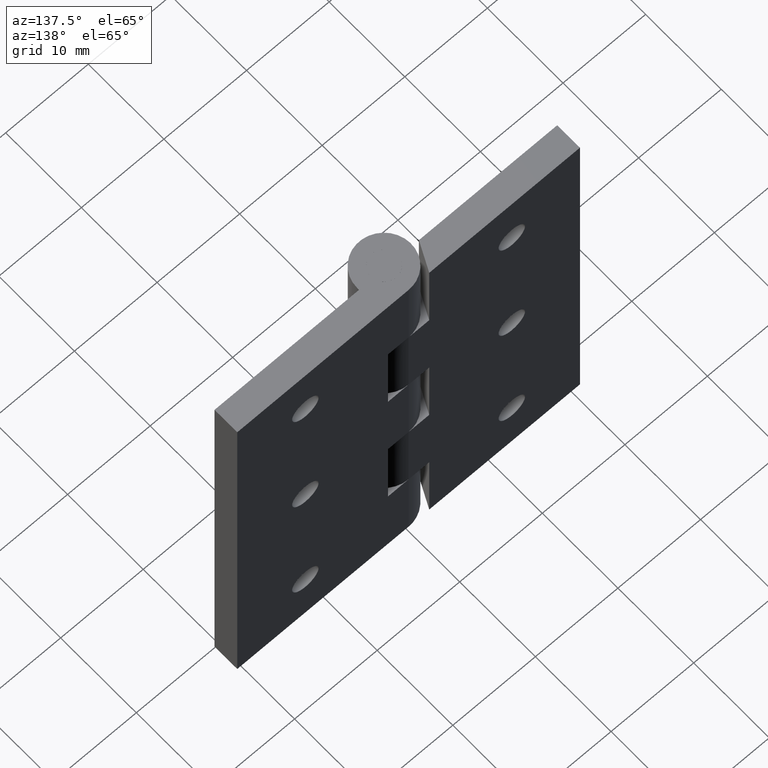
[diagram: clean part render]
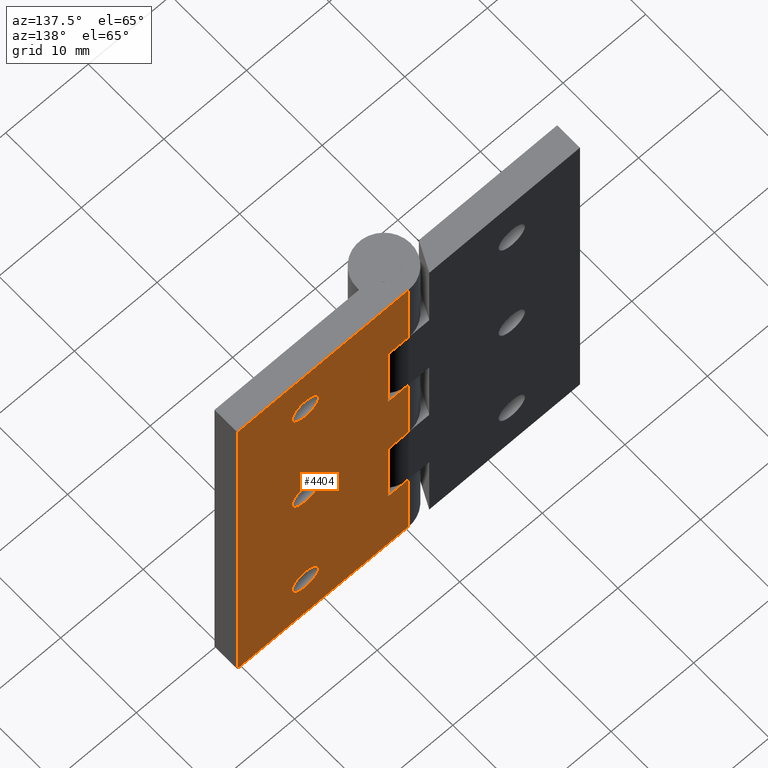
[diagram: same view with one face highlighted and labeled with its STEP entity id]
A machine part, auxiliary view. The second image highlights one B-rep face of the part: STEP entity #4404.
In plain terms, the highlighted face is a freeform B-spline surface patch.
Its self-contained STEP definition (entity closure, byte-faithful):
#2379=CARTESIAN_POINT('',(14.097015677470051,3.250002000000000,43.097677663336462));
#2380=VERTEX_POINT('',#2379);
#2386=CARTESIAN_POINT('',(12.500000000000000,3.250002000000000,41.399999999999999));
#2387=VERTEX_POINT('',#2386);
#2388=CARTESIAN_POINT('',(14.097015677470059,3.250002000000000,43.097677663336462));
#2389=CARTESIAN_POINT('',(14.100000000000003,3.250002000000000,43.048884421318199));
#2390=CARTESIAN_POINT('',(14.100000000000000,3.250002000000000,43.0));
#2391=CARTESIAN_POINT('',(14.100000000000001,3.250002000000001,41.399999999999999));
#2392=CARTESIAN_POINT('',(12.500000000000000,3.250002000000000,41.399999999999999));
#2400=(BOUNDED_CURVE()B_SPLINE_CURVE(2,(#2388,#2389,#2390,#2391,#2392),.UNSPECIFIED.,.F.,.U.)B_SPLINE_CURVE_WITH_KNOTS((3,2,3),(0.239332962233251,0.250000000000000,0.500000000000000),.UNSPECIFIED.)CURVE()GEOMETRIC_REPRESENTATION_ITEM()RATIONAL_B_SPLINE_CURVE((0.976072041654520,0.987502787893169,1.0,0.707106781186548,1.0))REPRESENTATION_ITEM(''));
#2401=EDGE_CURVE('',#2380,#2387,#2400,.T.);
#2403=CARTESIAN_POINT('',(10.902984322529949,3.250002000000000,42.902322336663552));
#2404=VERTEX_POINT('',#2403);
#2405=CARTESIAN_POINT('',(12.500000000000000,3.250002000000000,41.399999999999999));
#2406=CARTESIAN_POINT('',(10.994870293027079,3.250002000000000,41.399999999999999));
#2407=CARTESIAN_POINT('',(10.902984322529951,3.250002000000000,42.902322336663531));
#2415=(BOUNDED_CURVE()B_SPLINE_CURVE(2,(#2405,#2406,#2407),.UNSPECIFIED.,.F.,.U.)B_SPLINE_CURVE_WITH_KNOTS((3,3),(0.500000000000000,0.739332962233250),.UNSPECIFIED.)CURVE()GEOMETRIC_REPRESENTATION_ITEM()RATIONAL_B_SPLINE_CURVE((1.0,0.719603993293380,0.976072041654517))REPRESENTATION_ITEM(''));
#2416=EDGE_CURVE('',#2387,#2404,#2415,.T.);
#2449=CARTESIAN_POINT('',(12.500000000000000,3.250002000000000,44.599999999999987));
#2450=VERTEX_POINT('',#2449);
#2451=CARTESIAN_POINT('',(10.902984322529946,3.250002000000000,42.902322336663538));
#2452=CARTESIAN_POINT('',(10.899999999999997,3.250002000000001,42.951115578681808));
#2453=CARTESIAN_POINT('',(10.900000000000000,3.250002000000000,43.0));
#2454=CARTESIAN_POINT('',(10.900000000000000,3.250002000000001,44.600000000000001));
#2455=CARTESIAN_POINT('',(12.500000000000000,3.250002000000000,44.599999999999987));
#2463=(BOUNDED_CURVE()B_SPLINE_CURVE(2,(#2451,#2452,#2453,#2454,#2455),.UNSPECIFIED.,.F.,.U.)B_SPLINE_CURVE_WITH_KNOTS((3,2,3),(0.739332962233251,0.750000000000000,1.0),.UNSPECIFIED.)CURVE()GEOMETRIC_REPRESENTATION_ITEM()RATIONAL_B_SPLINE_CURVE((0.976072041654519,0.987502787893169,1.0,0.707106781186548,1.0))REPRESENTATION_ITEM(''));
#2464=EDGE_CURVE('',#2404,#2450,#2463,.T.);
#2466=CARTESIAN_POINT('',(12.500000000000000,3.250002000000000,44.599999999999987));
#2467=CARTESIAN_POINT('',(14.005129706972923,3.250002000000001,44.599999999999994));
#2468=CARTESIAN_POINT('',(14.097015677470056,3.250002000000001,43.097677663336462));
#2476=(BOUNDED_CURVE()B_SPLINE_CURVE(2,(#2466,#2467,#2468),.UNSPECIFIED.,.F.,.U.)B_SPLINE_CURVE_WITH_KNOTS((3,3),(0.0,0.239332962233251),.UNSPECIFIED.)CURVE()GEOMETRIC_REPRESENTATION_ITEM()RATIONAL_B_SPLINE_CURVE((1.0,0.719603993293379,0.976072041654518))REPRESENTATION_ITEM(''));
#2477=EDGE_CURVE('',#2450,#2380,#2476,.T.);
#2715=CARTESIAN_POINT('',(14.097015677470051,3.250002000000000,25.097677663336459));
#2716=VERTEX_POINT('',#2715);
#2722=CARTESIAN_POINT('',(12.500000000000000,3.250002000000000,23.399999999999999));
#2723=VERTEX_POINT('',#2722);
#2724=CARTESIAN_POINT('',(14.097015677470052,3.250002000000001,25.097677663336462));
#2725=CARTESIAN_POINT('',(14.100000000000007,3.250002000000000,25.048884421318196));
#2726=CARTESIAN_POINT('',(14.100000000000000,3.250002000000000,25.0));
#2727=CARTESIAN_POINT('',(14.100000000000001,3.250002000000001,23.400000000000009));
#2728=CARTESIAN_POINT('',(12.500000000000000,3.250002000000000,23.399999999999999));
#2736=(BOUNDED_CURVE()B_SPLINE_CURVE(2,(#2724,#2725,#2726,#2727,#2728),.UNSPECIFIED.,.F.,.U.)B_SPLINE_CURVE_WITH_KNOTS((3,2,3),(0.239332962233251,0.250000000000000,0.500000000000000),.UNSPECIFIED.)CURVE()GEOMETRIC_REPRESENTATION_ITEM()RATIONAL_B_SPLINE_CURVE((0.976072041654518,0.987502787893168,1.0,0.707106781186548,1.0))REPRESENTATION_ITEM(''));
#2737=EDGE_CURVE('',#2716,#2723,#2736,.T.);
#2739=CARTESIAN_POINT('',(10.902984322529949,3.250002000000000,24.902322336663548));
#2740=VERTEX_POINT('',#2739);
#2741=CARTESIAN_POINT('',(12.500000000000000,3.250002000000000,23.399999999999999));
#2742=CARTESIAN_POINT('',(10.994870293027075,3.250002000000001,23.400000000000002));
#2743=CARTESIAN_POINT('',(10.902984322529946,3.250002000000000,24.902322336663545));
#2751=(BOUNDED_CURVE()B_SPLINE_CURVE(2,(#2741,#2742,#2743),.UNSPECIFIED.,.F.,.U.)B_SPLINE_CURVE_WITH_KNOTS((3,3),(0.500000000000000,0.739332962233251),.UNSPECIFIED.)CURVE()GEOMETRIC_REPRESENTATION_ITEM()RATIONAL_B_SPLINE_CURVE((1.0,0.719603993293379,0.976072041654518))REPRESENTATION_ITEM(''));
#2752=EDGE_CURVE('',#2723,#2740,#2751,.T.);
#2785=CARTESIAN_POINT('',(12.500000000000000,3.250002000000000,26.600000000000001));
#2786=VERTEX_POINT('',#2785);
#2787=CARTESIAN_POINT('',(10.902984322529942,3.250002000000001,24.902322336663545));
#2788=CARTESIAN_POINT('',(10.900000000000002,3.250002000000000,24.951115578681801));
#2789=CARTESIAN_POINT('',(10.900000000000000,3.250002000000000,25.0));
#2790=CARTESIAN_POINT('',(10.900000000000000,3.250002000000001,26.599999999999991));
#2791=CARTESIAN_POINT('',(12.500000000000000,3.250002000000000,26.600000000000001));
#2799=(BOUNDED_CURVE()B_SPLINE_CURVE(2,(#2787,#2788,#2789,#2790,#2791),.UNSPECIFIED.,.F.,.U.)B_SPLINE_CURVE_WITH_KNOTS((3,2,3),(0.739332962233251,0.750000000000000,1.0),.UNSPECIFIED.)CURVE()GEOMETRIC_REPRESENTATION_ITEM()RATIONAL_B_SPLINE_CURVE((0.976072041654519,0.987502787893169,1.0,0.707106781186548,1.0))REPRESENTATION_ITEM(''));
#2800=EDGE_CURVE('',#2740,#2786,#2799,.T.);
#2802=CARTESIAN_POINT('',(12.500000000000000,3.250002000000000,26.600000000000001));
#2803=CARTESIAN_POINT('',(14.005129706972927,3.250002000000000,26.599999999999998));
#2804=CARTESIAN_POINT('',(14.097015677470058,3.250002000000000,25.097677663336462));
#2812=(BOUNDED_CURVE()B_SPLINE_CURVE(2,(#2802,#2803,#2804),.UNSPECIFIED.,.F.,.U.)B_SPLINE_CURVE_WITH_KNOTS((3,3),(0.0,0.239332962233251),.UNSPECIFIED.)CURVE()GEOMETRIC_REPRESENTATION_ITEM()RATIONAL_B_SPLINE_CURVE((1.0,0.719603993293379,0.976072041654518))REPRESENTATION_ITEM(''));
#2813=EDGE_CURVE('',#2786,#2716,#2812,.T.);
#3051=CARTESIAN_POINT('',(14.097015677470051,3.250002000000000,7.097677663336357));
#3052=VERTEX_POINT('',#3051);
#3058=CARTESIAN_POINT('',(12.500000000000000,3.250002000000000,5.399999999999901));
#3059=VERTEX_POINT('',#3058);
#3060=CARTESIAN_POINT('',(14.097015677470052,3.250002000000001,7.097677663336356));
#3061=CARTESIAN_POINT('',(14.100000000000001,3.250002000000000,7.048884421318098));
#3062=CARTESIAN_POINT('',(14.100000000000000,3.250002000000000,6.999999999999901));
#3063=CARTESIAN_POINT('',(14.100000000000001,3.250002000000001,5.399999999999901));
#3064=CARTESIAN_POINT('',(12.500000000000000,3.250002000000000,5.399999999999901));
#3072=(BOUNDED_CURVE()B_SPLINE_CURVE(2,(#3060,#3061,#3062,#3063,#3064),.UNSPECIFIED.,.F.,.U.)B_SPLINE_CURVE_WITH_KNOTS((3,2,3),(0.239332962233251,0.250000000000000,0.500000000000000),.UNSPECIFIED.)CURVE()GEOMETRIC_REPRESENTATION_ITEM()RATIONAL_B_SPLINE_CURVE((0.976072041654519,0.987502787893169,1.0,0.707106781186548,1.0))REPRESENTATION_ITEM(''));
#3073=EDGE_CURVE('',#3052,#3059,#3072,.T.);
#3075=CARTESIAN_POINT('',(10.902984322529949,3.250002000000000,6.902322336663445));
#3076=VERTEX_POINT('',#3075);
#3077=CARTESIAN_POINT('',(12.500000000000000,3.250002000000000,5.399999999999901));
#3078=CARTESIAN_POINT('',(10.994870293027072,3.250002000000001,5.399999999999902));
#3079=CARTESIAN_POINT('',(10.902984322529942,3.250002000000001,6.902322336663445));
#3087=(BOUNDED_CURVE()B_SPLINE_CURVE(2,(#3077,#3078,#3079),.UNSPECIFIED.,.F.,.U.)B_SPLINE_CURVE_WITH_KNOTS((3,3),(0.500000000000000,0.739332962233251),.UNSPECIFIED.)CURVE()GEOMETRIC_REPRESENTATION_ITEM()RATIONAL_B_SPLINE_CURVE((1.0,0.719603993293379,0.976072041654519))REPRESENTATION_ITEM(''));
#3088=EDGE_CURVE('',#3059,#3076,#3087,.T.);
#3121=CARTESIAN_POINT('',(12.500000000000000,3.250002000000000,8.599999999999902));
#3122=VERTEX_POINT('',#3121);
#3123=CARTESIAN_POINT('',(10.902984322529951,3.250002000000001,6.902322336663447));
#3124=CARTESIAN_POINT('',(10.900000000000000,3.250002000000001,6.951115578681704));
#3125=CARTESIAN_POINT('',(10.900000000000000,3.250002000000000,6.999999999999901));
#3126=CARTESIAN_POINT('',(10.900000000000000,3.250002000000001,8.599999999999900));
#3127=CARTESIAN_POINT('',(12.500000000000000,3.250002000000000,8.599999999999902));
#3135=(BOUNDED_CURVE()B_SPLINE_CURVE(2,(#3123,#3124,#3125,#3126,#3127),.UNSPECIFIED.,.F.,.U.)B_SPLINE_CURVE_WITH_KNOTS((3,2,3),(0.739332962233251,0.750000000000000,1.0),.UNSPECIFIED.)CURVE()GEOMETRIC_REPRESENTATION_ITEM()RATIONAL_B_SPLINE_CURVE((0.976072041654519,0.987502787893169,1.0,0.707106781186548,1.0))REPRESENTATION_ITEM(''));
#3136=EDGE_CURVE('',#3076,#3122,#3135,.T.);
#3138=CARTESIAN_POINT('',(12.500000000000000,3.250002000000000,8.599999999999902));
#3139=CARTESIAN_POINT('',(14.005129706972930,3.250002000000001,8.599999999999898));
#3140=CARTESIAN_POINT('',(14.097015677470052,3.250002000000001,7.097677663336357));
#3148=(BOUNDED_CURVE()B_SPLINE_CURVE(2,(#3138,#3139,#3140),.UNSPECIFIED.,.F.,.U.)B_SPLINE_CURVE_WITH_KNOTS((3,3),(0.0,0.239332962233251),.UNSPECIFIED.)CURVE()GEOMETRIC_REPRESENTATION_ITEM()RATIONAL_B_SPLINE_CURVE((1.0,0.719603993293379,0.976072041654519))REPRESENTATION_ITEM(''));
#3149=EDGE_CURVE('',#3122,#3052,#3148,.T.);
#3709=CARTESIAN_POINT('',(20.750000000000000,3.250002000000000,50.0));
#3710=VERTEX_POINT('',#3709);
#3723=CARTESIAN_POINT('',(20.750000000000000,3.250002000000000,0.0));
#3724=VERTEX_POINT('',#3723);
#3730=CARTESIAN_POINT('',(20.750000000000000,3.250002000000000,0.0));
#3731=CARTESIAN_POINT('',(20.750000000000000,3.250002000000000,50.0));
#3732=QUASI_UNIFORM_CURVE('',1,(#3730,#3731),.UNSPECIFIED.,.F.,.U.);
#3733=EDGE_CURVE('',#3724,#3710,#3732,.T.);
#3744=CARTESIAN_POINT('',(0.0,3.250002000000000,50.0));
#3745=VERTEX_POINT('',#3744);
#3746=CARTESIAN_POINT('',(20.750000000000000,3.250002000000000,50.0));
#3747=CARTESIAN_POINT('',(0.0,3.250002000000000,50.0));
#3748=QUASI_UNIFORM_CURVE('',1,(#3746,#3747),.UNSPECIFIED.,.F.,.U.);
#3749=EDGE_CURVE('',#3710,#3745,#3748,.T.);
#3826=CARTESIAN_POINT('',(0.0,3.250002000000000,0.0));
#3827=VERTEX_POINT('',#3826);
#3860=CARTESIAN_POINT('',(20.750000000000000,3.250002000000000,0.0));
#3861=CARTESIAN_POINT('',(0.0,3.250002000000000,0.0));
#3862=QUASI_UNIFORM_CURVE('',1,(#3860,#3861),.UNSPECIFIED.,.F.,.U.);
#3863=EDGE_CURVE('',#3724,#3827,#3862,.T.);
#3924=CARTESIAN_POINT('',(-5.969960E-016,3.250002000000000,40.0));
#3925=VERTEX_POINT('',#3924);
#3959=CARTESIAN_POINT('',(-5.969960E-016,3.250002000000000,40.0));
#3960=CARTESIAN_POINT('',(0.0,3.250002000000000,50.0));
#3961=QUASI_UNIFORM_CURVE('',1,(#3959,#3960),.UNSPECIFIED.,.F.,.U.);
#3962=EDGE_CURVE('',#3925,#3745,#3961,.T.);
#3981=CARTESIAN_POINT('',(-5.969960E-016,3.250002000000000,20.0));
#3982=VERTEX_POINT('',#3981);
#4014=CARTESIAN_POINT('',(2.499982999999825,3.250002000000000,20.0));
#4015=VERTEX_POINT('',#4014);
#4016=CARTESIAN_POINT('',(-5.969960E-016,3.250002000000000,20.0));
#4017=CARTESIAN_POINT('',(2.499982999999825,3.250002000000000,20.0));
#4018=QUASI_UNIFORM_CURVE('',1,(#4016,#4017),.UNSPECIFIED.,.F.,.U.);
#4019=EDGE_CURVE('',#3982,#4015,#4018,.T.);
#4063=CARTESIAN_POINT('',(2.499982999999825,3.250002000000000,10.0));
#4064=VERTEX_POINT('',#4063);
#4070=CARTESIAN_POINT('',(-5.969960E-016,3.250002000000000,10.0));
#4071=VERTEX_POINT('',#4070);
#4072=CARTESIAN_POINT('',(-5.969960E-016,3.250002000000000,10.0));
#4073=CARTESIAN_POINT('',(2.499982999999825,3.250002000000000,10.0));
#4074=QUASI_UNIFORM_CURVE('',1,(#4072,#4073),.UNSPECIFIED.,.F.,.U.);
#4075=EDGE_CURVE('',#4071,#4064,#4074,.T.);
#4123=CARTESIAN_POINT('',(2.499982999999825,3.250002000000000,10.0));
#4124=CARTESIAN_POINT('',(2.499982999999825,3.250002000000000,20.0));
#4125=QUASI_UNIFORM_CURVE('',1,(#4123,#4124),.UNSPECIFIED.,.F.,.U.);
#4126=EDGE_CURVE('',#4064,#4015,#4125,.T.);
#4144=CARTESIAN_POINT('',(2.499982999999825,3.250002000000000,40.0));
#4145=VERTEX_POINT('',#4144);
#4146=CARTESIAN_POINT('',(-5.969960E-016,3.250002000000000,40.0));
#4147=CARTESIAN_POINT('',(2.499982999999825,3.250002000000000,40.0));
#4148=QUASI_UNIFORM_CURVE('',1,(#4146,#4147),.UNSPECIFIED.,.F.,.U.);
#4149=EDGE_CURVE('',#3925,#4145,#4148,.T.);
#4193=CARTESIAN_POINT('',(2.499982999999825,3.250002000000000,30.0));
#4194=VERTEX_POINT('',#4193);
#4200=CARTESIAN_POINT('',(-5.969960E-016,3.250002000000000,30.0));
#4201=VERTEX_POINT('',#4200);
#4202=CARTESIAN_POINT('',(-5.969960E-016,3.250002000000000,30.0));
#4203=CARTESIAN_POINT('',(2.499982999999825,3.250002000000000,30.0));
#4204=QUASI_UNIFORM_CURVE('',1,(#4202,#4203),.UNSPECIFIED.,.F.,.U.);
#4205=EDGE_CURVE('',#4201,#4194,#4204,.T.);
#4254=CARTESIAN_POINT('',(2.499982999999825,3.250002000000000,30.0));
#4255=CARTESIAN_POINT('',(2.499982999999825,3.250002000000000,40.0));
#4256=QUASI_UNIFORM_CURVE('',1,(#4254,#4255),.UNSPECIFIED.,.F.,.U.);
#4257=EDGE_CURVE('',#4194,#4145,#4256,.T.);
#4354=CARTESIAN_POINT('',(0.0,3.250002000000000,0.0));
#4355=CARTESIAN_POINT('',(-5.969960E-016,3.250002000000000,10.0));
#4356=QUASI_UNIFORM_CURVE('',1,(#4354,#4355),.UNSPECIFIED.,.F.,.U.);
#4357=EDGE_CURVE('',#3827,#4071,#4356,.T.);
#4363=CARTESIAN_POINT('',(-1.036462459782475,3.250002000000000,-2.497499903090299));
#4364=CARTESIAN_POINT('',(-1.036462459782475,3.250002000000000,52.497501244194808));
#4365=CARTESIAN_POINT('',(21.786463016340850,3.250002000000000,-2.497499903090299));
#4366=CARTESIAN_POINT('',(21.786463016340850,3.250002000000000,52.497501244194808));
#4367=B_SPLINE_SURFACE_WITH_KNOTS('',1,1,((#4363,#4365),(#4364,#4366)),.UNSPECIFIED.,.F.,.F.,.U.,(2,2),(2,2),(0.0,54.995001147285109),(0.0,22.822925476123320),.UNSPECIFIED.);
#4368=ORIENTED_EDGE('',*,*,#4075,.T.);
#4369=ORIENTED_EDGE('',*,*,#4126,.T.);
#4370=ORIENTED_EDGE('',*,*,#4019,.F.);
#4371=CARTESIAN_POINT('',(-5.969960E-016,3.250002000000000,20.0));
#4372=CARTESIAN_POINT('',(-5.969960E-016,3.250002000000000,30.0));
#4373=QUASI_UNIFORM_CURVE('',1,(#4371,#4372),.UNSPECIFIED.,.F.,.U.);
#4374=EDGE_CURVE('',#3982,#4201,#4373,.T.);
#4375=ORIENTED_EDGE('',*,*,#4374,.T.);
#4376=ORIENTED_EDGE('',*,*,#4205,.T.);
#4377=ORIENTED_EDGE('',*,*,#4257,.T.);
#4378=ORIENTED_EDGE('',*,*,#4149,.F.);
#4379=ORIENTED_EDGE('',*,*,#3962,.T.);
#4380=ORIENTED_EDGE('',*,*,#3749,.F.);
#4381=ORIENTED_EDGE('',*,*,#3733,.F.);
#4382=ORIENTED_EDGE('',*,*,#3863,.T.);
#4383=ORIENTED_EDGE('',*,*,#4357,.T.);
#4384=EDGE_LOOP('',(#4368,#4369,#4370,#4375,#4376,#4377,#4378,#4379,#4380,#4381,#4382,#4383));
#4385=FACE_OUTER_BOUND('',#4384,.T.);
#4386=ORIENTED_EDGE('',*,*,#3088,.F.);
#4387=ORIENTED_EDGE('',*,*,#3073,.F.);
#4388=ORIENTED_EDGE('',*,*,#3149,.F.);
#4389=ORIENTED_EDGE('',*,*,#3136,.F.);
#4390=EDGE_LOOP('',(#4386,#4387,#4388,#4389));
#4391=FACE_BOUND('',#4390,.T.);
#4392=ORIENTED_EDGE('',*,*,#2752,.F.);
#4393=ORIENTED_EDGE('',*,*,#2737,.F.);
#4394=ORIENTED_EDGE('',*,*,#2813,.F.);
#4395=ORIENTED_EDGE('',*,*,#2800,.F.);
#4396=EDGE_LOOP('',(#4392,#4393,#4394,#4395));
#4397=FACE_BOUND('',#4396,.T.);
#4398=ORIENTED_EDGE('',*,*,#2416,.F.);
#4399=ORIENTED_EDGE('',*,*,#2401,.F.);
#4400=ORIENTED_EDGE('',*,*,#2477,.F.);
#4401=ORIENTED_EDGE('',*,*,#2464,.F.);
#4402=EDGE_LOOP('',(#4398,#4399,#4400,#4401));
#4403=FACE_BOUND('',#4402,.T.);
#4404=ADVANCED_FACE('',(#4385,#4391,#4397,#4403),#4367,.T.);